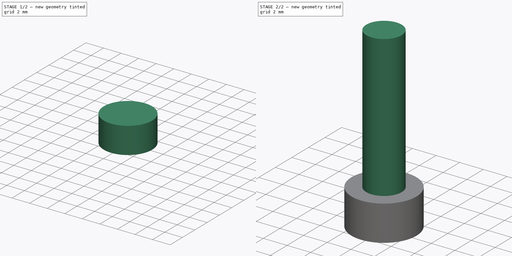
[diagram: build sequence overview — one tinted view per stage of 2, left to right]
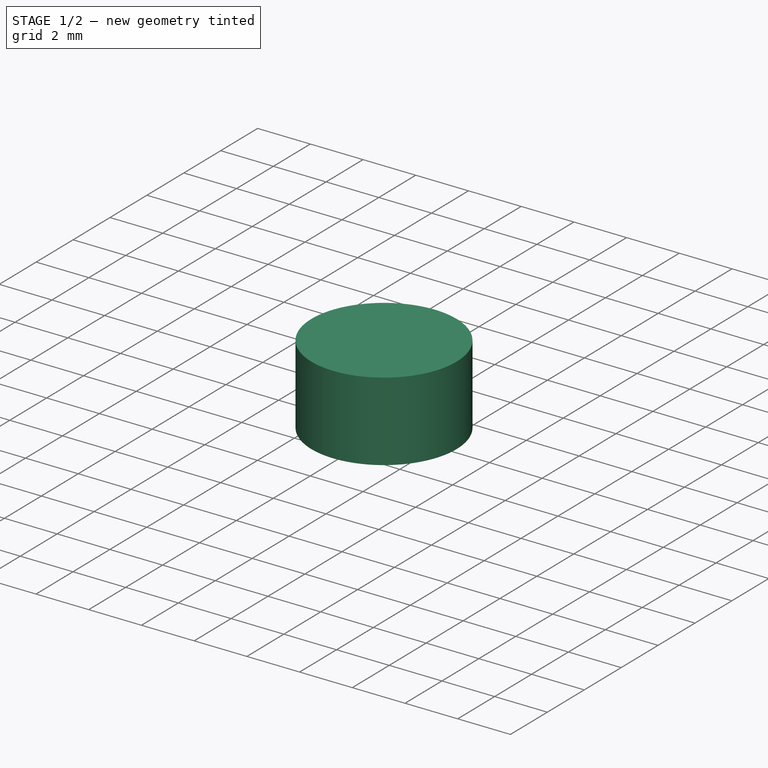
[diagram: stage 1 of 2 — iso view after this stage's code; geometry added in this stage tinted green]
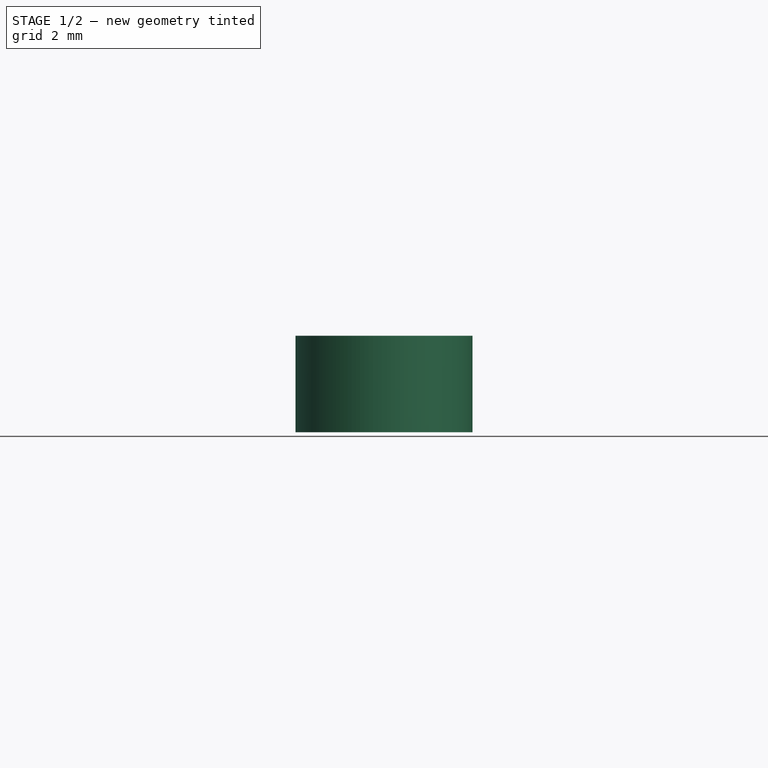
[diagram: stage 1 of 2 — front view after this stage's code; geometry added in this stage tinted green]
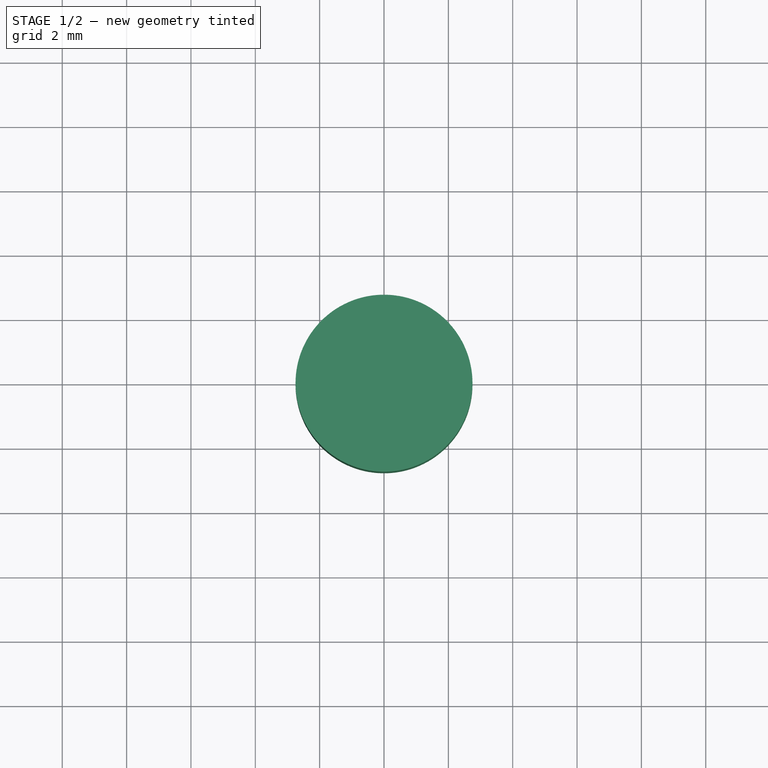
[diagram: stage 1 of 2 — top view after this stage's code; geometry added in this stage tinted green]
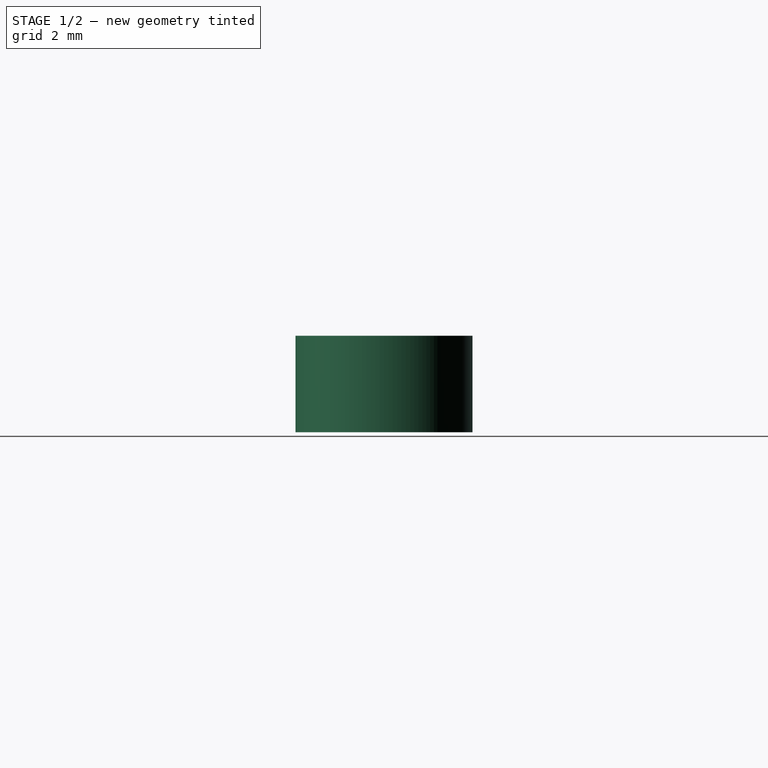
[diagram: stage 1 of 2 — right view after this stage's code; geometry added in this stage tinted green]
FCSTD DOCUMENT
Label: m3-14capheadscrew
objects: Part::Cylinder×2, Sketcher::SketchObject×1, PartDesign::Pocket×1
note: 4 computed .brp shape members not serialized (recipe doc carries the construction recipe); baked Part::Feature solids carry a one-line shape summary decoded from their .brp

FEATURE [Part::Cylinder] Cylinder
  Angle = 360
  Height = 3
  Radius = 2.75
FEATURE [Sketcher::SketchObject] Sketch
  Placement = pos=(0,0,0) rot=(1,0,0;3.14159rad)
  Support = -> Cylinder [Face3]
  sketch-geometry (6):
    g0: LineSegment StartX=-1.44506 StartY=-2.21688e-07 StartZ=0 EndX=-0.723376 EndY=1.25 EndZ=0
    g1: LineSegment StartX=-0.723376 StartY=1.25 StartZ=0 EndX=0.72 EndY=1.25 EndZ=0
    g2: LineSegment StartX=0.72 StartY=1.25 StartZ=0 EndX=1.44169 EndY=0 EndZ=0
    g3: LineSegment StartX=1.44169 StartY=0 StartZ=0 EndX=0.72 EndY=-1.25 EndZ=0
    g4: LineSegment StartX=0.72 StartY=-1.25 StartZ=0 EndX=-0.723375 EndY=-1.25 EndZ=0
    g5: LineSegment StartX=-0.723375 StartY=-1.25 StartZ=0 EndX=-1.44506 EndY=-2.21688e-07 EndZ=0
  constraints (18):
    c: Coincident(g0,g1)
    c: Horizontal(g1)
    c: Coincident(g1,g2)
    c: Coincident(g3,g4)
    c: Coincident(g4,g5)
    c: Coincident(g0,g5)
    c: Angle(g5,g0) = 2.0944
    c: Angle(g0,g1) = 2.0944
    c: DistanceY(g4,g0) = 2.5
    c: Equal(g4,g5)
    c: Equal(g5,g0)
    c: Equal(g0,g1)
    c: Equal(g1,g2)
    c: Equal(g2,g3)
    c: Coincident(g2,g3)
    c: Angle(g2,g3) = 2.0944
    c: DistanceY(g2) = 0
    c: DistanceX(g1) = 0.72
FEATURE [PartDesign::Pocket] Pocket
  Length = 2
  Sketch = -> Sketch
  Type = 0
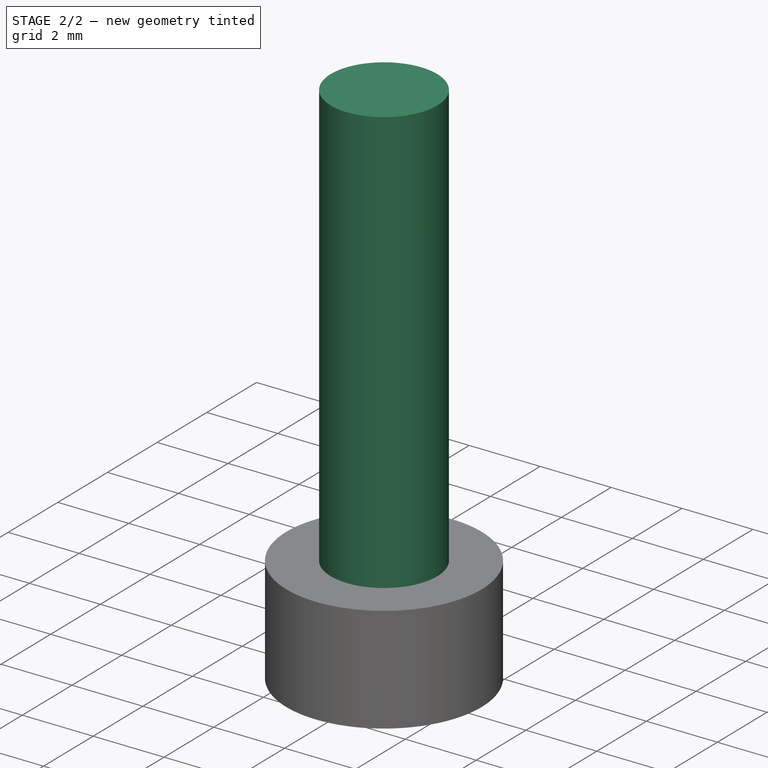
[diagram: stage 2 of 2 — iso view after this stage's code; geometry added in this stage tinted green]
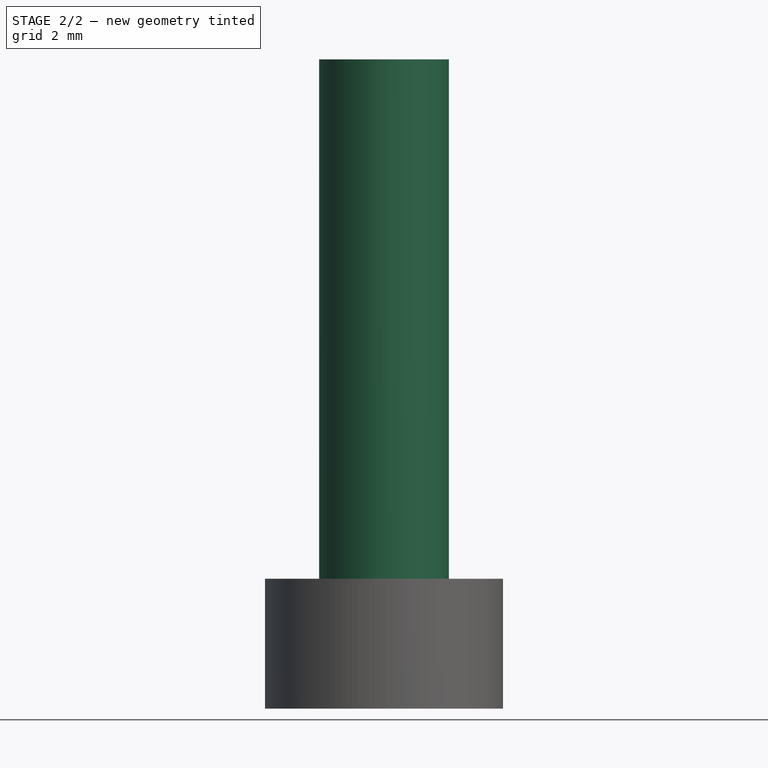
[diagram: stage 2 of 2 — front view after this stage's code; geometry added in this stage tinted green]
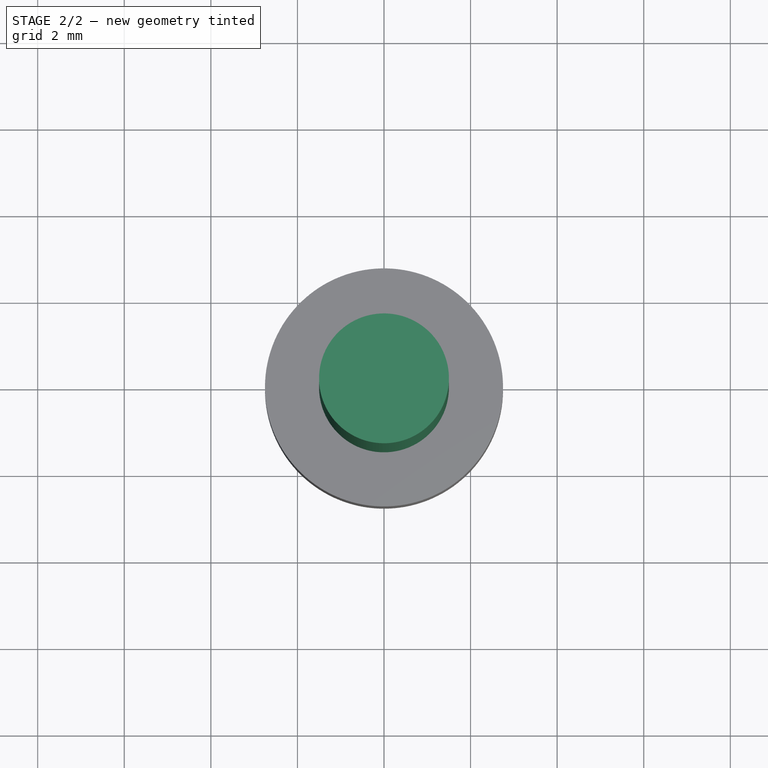
[diagram: stage 2 of 2 — top view after this stage's code; geometry added in this stage tinted green]
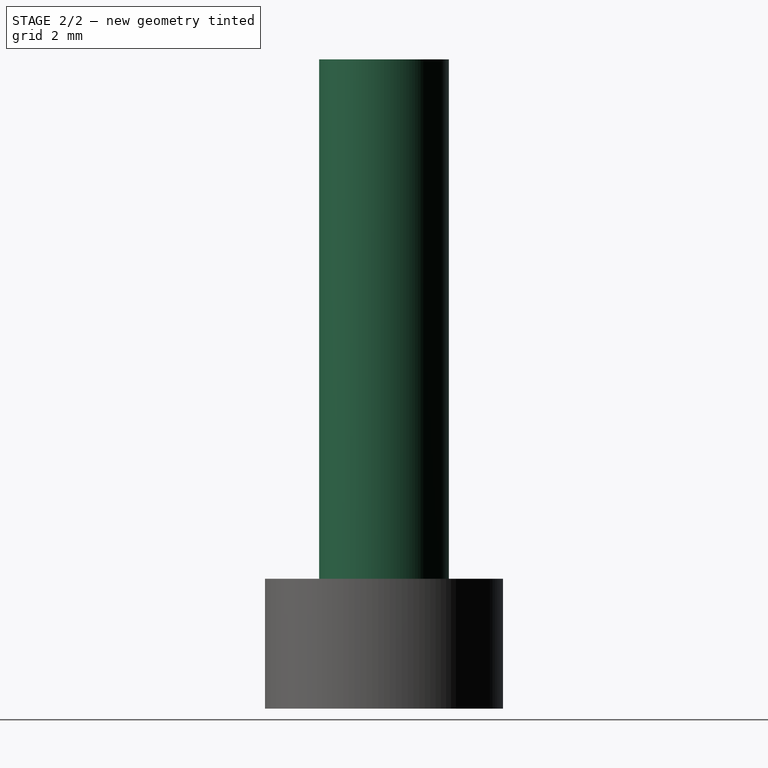
[diagram: stage 2 of 2 — right view after this stage's code; geometry added in this stage tinted green]
FEATURE [Part::Cylinder] Cylinder001
  Angle = 360
  Height = 12
  Placement = pos=(0,0,3) rot=(0,0,1;0rad)
  Radius = 1.5
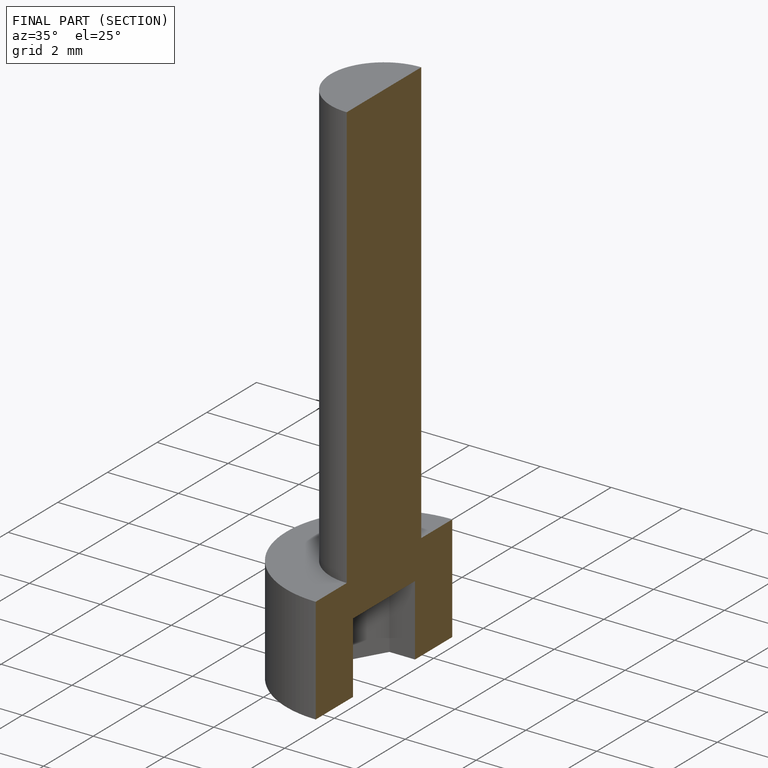
[diagram: finished part — half-section view (interior)]
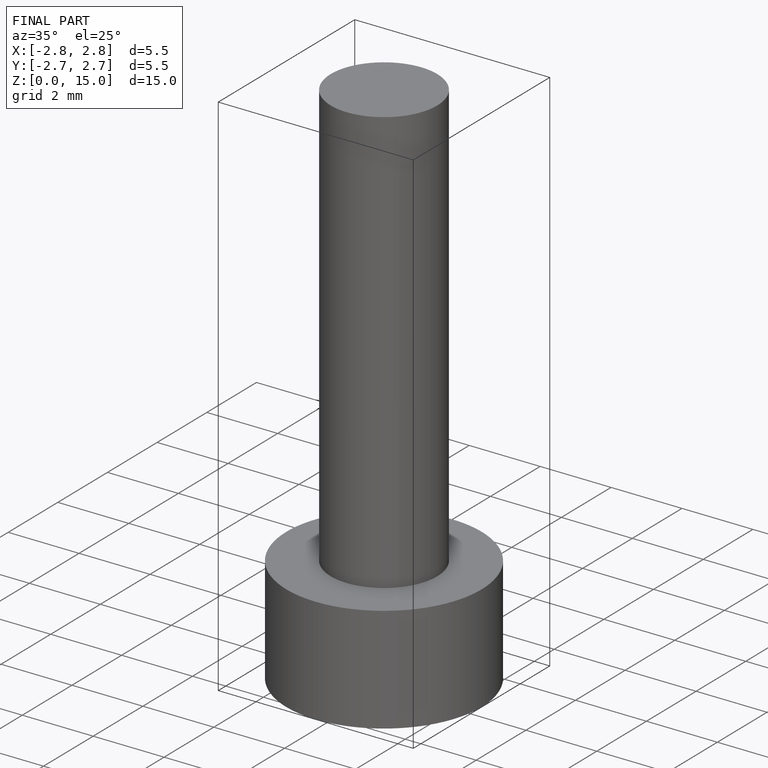
[diagram: finished part — iso view with bounding-box wireframe]
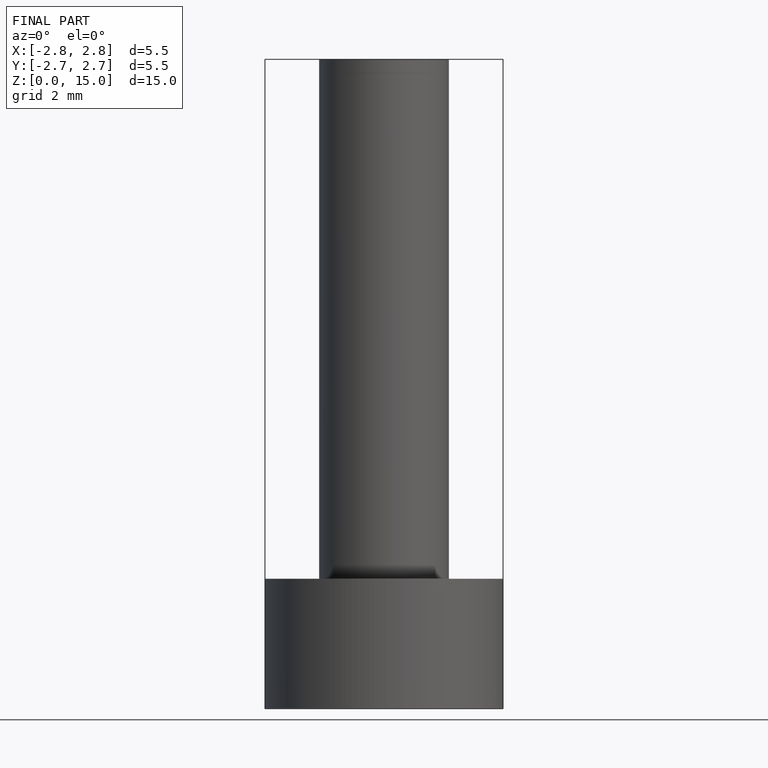
[diagram: finished part — front view with bounding-box wireframe]
